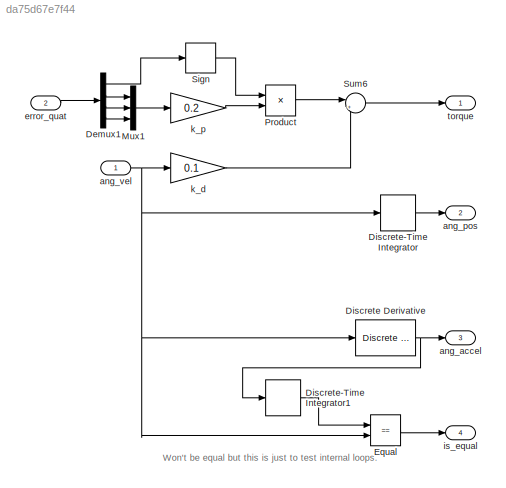
MODEL slx_da75d67e7f44
KIND model
CONFIG AbsTol = auto
CONFIG EnableMultiTasking = off
CONFIG FixedStep = auto
CONFIG MaxStep = auto
CONFIG MinStep = auto
CONFIG RelTol = 1e-3
CONFIG SampleTimeConstraint = Unconstrained
CONFIG SolverName = VariableStepAuto
CONFIG StartTime = 0.0
CONFIG StopTime = 10.0
BLOCK [Demux] Demux1
  Ports = [1, 4]
BLOCK [Reference] Discrete Derivative  REF=simulink/Discrete/Discrete Derivative
  Ports = [1, 1]
  SourceBlock = simulink/Discrete/Discrete Derivative
  SourceProductBaseCode = SL
  SourceType = Discrete Derivative
BLOCK [DiscreteIntegrator] Discrete-Time Integrator
  ICPrevOutput = DiscIntNeverNeededParam
  ICPrevScaledInput = DiscIntNeverNeededParam
  InitialCondition = 50
  InitialConditionSetting = Auto
  Ports = [1, 1]
  SampleTime = -1
BLOCK [DiscreteIntegrator] Discrete-Time Integrator1
  ICPrevOutput = DiscIntNeverNeededParam
  ICPrevScaledInput = DiscIntNeverNeededParam
  InitialConditionSetting = Auto
  Ports = [1, 1]
  SampleTime = -1
BLOCK [RelationalOperator] Equal
  InputSameDT = off
  Operator = ==
  OutDataTypeStr = boolean
  Ports = [2, 1]
  RndMeth = Simplest
BLOCK [Mux] Mux1
  DisplayOption = bar
  Inputs = 3
  Ports = [3, 1]
BLOCK [Product] Product
  Ports = [2, 1]
BLOCK [Signum] Sign
BLOCK [Sum] Sum6
  Inputs = |++
  Ports = [2, 1]
BLOCK [Outport] ang_accel
  Port = 3
BLOCK [Outport] ang_pos
  Port = 2
BLOCK [Inport] ang_vel
  PortDimensions = 3
BLOCK [Inport] error_quat
  Port = 2
  PortDimensions = 4
BLOCK [Outport] is_equal
  Port = 4
BLOCK [Gain] k_d
  Gain = 0.1
BLOCK [Gain] k_p
  Gain = 0.2
BLOCK [Outport] torque
ANNOTATION (root): Won't be equal but this is just to test internal loops.
LINE Demux1:1 -> Sign:1
LINE Demux1:2 -> Mux1:1
LINE Demux1:3 -> Mux1:2
LINE Demux1:4 -> Mux1:3
NET Discrete Derivative:1 -> Discrete-Time Integrator1:1, ang_accel:1
LINE Discrete-Time Integrator1:1 -> Equal:1
LINE Discrete-Time Integrator:1 -> ang_pos:1
LINE Equal:1 -> is_equal:1
LINE Mux1:1 -> k_p:1
LINE Product:1 -> Sum6:1
LINE Sign:1 -> Product:1
LINE Sum6:1 -> torque:1
NET ang_vel:1 -> Discrete Derivative:1, Discrete-Time Integrator:1, Equal:2, k_d:1
LINE error_quat:1 -> Demux1:1
LINE k_d:1 -> Sum6:2
LINE k_p:1 -> Product:2
note: NET lines group one-source signal fan-out (src -> all destinations, sorted); 1:1 wires keep LINE
